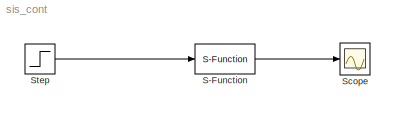
MODEL sis_cont
KIND model
BLOCK [S-Function] S-Function
  EnableBusSupport = off
  FunctionName = sistem_continuu
  Parameters = a,b,c
  Ports = [1, 1]
  SID = 3
BLOCK [Scope] Scope
  DataFormat = StructureWithTime
  Floating = off
  NumInputPorts = 1
  Ports = [1]
  SID = 1
  SampleTime = 0
BLOCK [Step] Step
  SID = 2
  SampleTime = 0
  ZeroCross = off
LINE S-Function:1 -> Scope:1
LINE Step:1 -> S-Function:1
